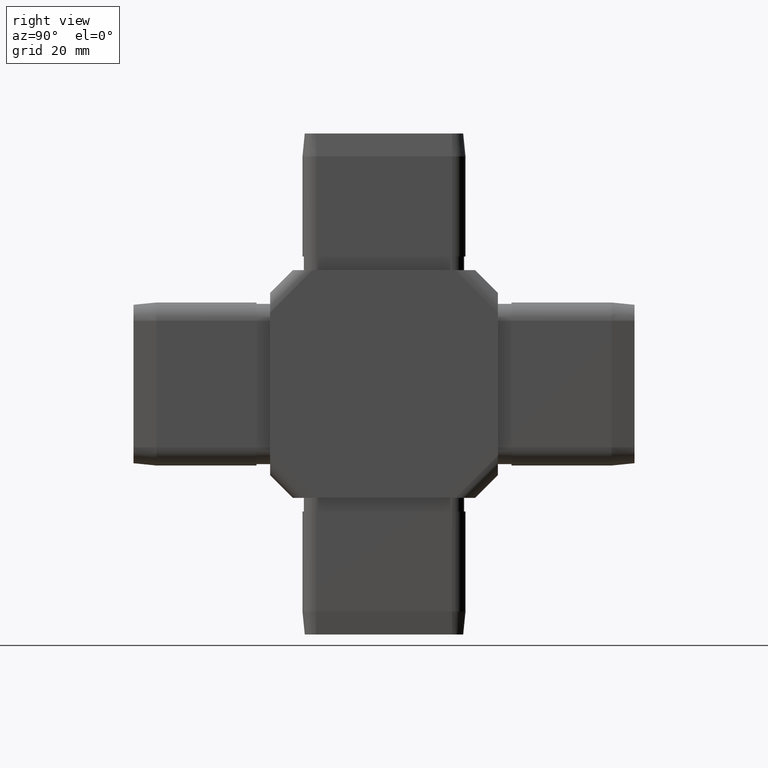
[diagram: clean part render]
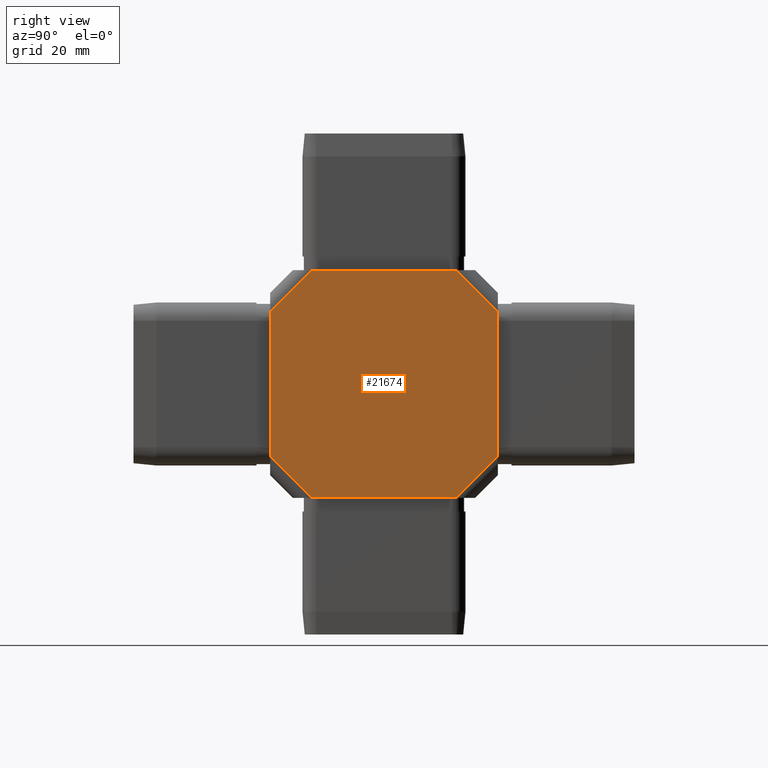
[diagram: same view with one face highlighted and labeled with its STEP entity id]
A machine part, right view. The second image highlights one B-rep face of the part: STEP entity #21674.
In plain terms, the highlighted planar face has unit normal (1, 0, -0).
Its self-contained STEP definition (entity closure, byte-faithful):
#174 = AXIS2_PLACEMENT_3D ( 'NONE', #9312, #21129, #16379 ) ;
#318 = VECTOR ( 'NONE', #21345, 1000.000000000000000 ) ;
#329 = DIRECTION ( 'NONE',  ( -1.471961680016035000E-016, 0.7071067811865455700, 0.7071067811865494600 ) ) ;
#453 = CARTESIAN_POINT ( 'NONE',  ( 19.99999999999999600, 15.75735931288067900, 25.00000000000000000 ) ) ;
#1091 = LINE ( 'NONE', #19353, #10152 ) ;
#1904 = EDGE_CURVE ( 'NONE', #4386, #14188, #13194, .T. ) ;
#2192 = CARTESIAN_POINT ( 'NONE',  ( 20.00000000000000400, -25.00000000000000000, 15.75735931288067900 ) ) ;
#2226 = VECTOR ( 'NONE', #23877, 1000.000000000000000 ) ;
#2455 = ORIENTED_EDGE ( 'NONE', *, *, #24351, .F. ) ;
#2489 = LINE ( 'NONE', #8210, #27411 ) ;
#3972 = CARTESIAN_POINT ( 'NONE',  ( 20.00000000000000400, -25.00000000000000000, -15.75735931288074100 ) ) ;
#4386 = VERTEX_POINT ( 'NONE', #14427 ) ;
#4405 = CARTESIAN_POINT ( 'NONE',  ( 19.99999999999999300, 25.00000000000000000, 25.00000000000000000 ) ) ;
#5938 = EDGE_CURVE ( 'NONE', #14478, #25061, #17197, .T. ) ;
#6453 = VERTEX_POINT ( 'NONE', #30884 ) ;
#6594 = CARTESIAN_POINT ( 'NONE',  ( 19.99999999999999300, 25.00000000000000000, 25.00000000000000000 ) ) ;
#6627 = LINE ( 'NONE', #26265, #28094 ) ;
#8210 = CARTESIAN_POINT ( 'NONE',  ( 19.99999999999999600, 4.621320343559522900, 45.37867965644036900 ) ) ;
#8287 = VECTOR ( 'NONE', #16705, 1000.000000000000000 ) ;
#9123 = CARTESIAN_POINT ( 'NONE',  ( 20.00000000000000400, -25.00000000000000000, 25.00000000000000000 ) ) ;
#9312 = CARTESIAN_POINT ( 'NONE',  ( 19.99999999999999300, 25.00000000000000000, 25.00000000000000000 ) ) ;
#9339 = VERTEX_POINT ( 'NONE', #9418 ) ;
#9418 = CARTESIAN_POINT ( 'NONE',  ( 19.99999999999999600, 15.75735931288073400, -25.00000000000000000 ) ) ;
#10152 = VECTOR ( 'NONE', #329, 1000.000000000000200 ) ;
#10768 = VECTOR ( 'NONE', #25967, 1000.000000000000000 ) ;
#11949 = CARTESIAN_POINT ( 'NONE',  ( 19.99999999999999300, 25.00000000000000000, -25.00000000000000000 ) ) ;
#12550 = DIRECTION ( 'NONE',  ( 1.471961680016042900E-016, -0.7071067811865494600, 0.7071067811865455700 ) ) ;
#13159 = DIRECTION ( 'NONE',  ( 1.471961680016035000E-016, -0.7071067811865455700, -0.7071067811865494600 ) ) ;
#13194 = LINE ( 'NONE', #4405, #2226 ) ;
#13357 = EDGE_CURVE ( 'NONE', #25061, #6453, #6627, .T. ) ;
#13422 = VERTEX_POINT ( 'NONE', #28582 ) ;
#14188 = VERTEX_POINT ( 'NONE', #22810 ) ;
#14427 = CARTESIAN_POINT ( 'NONE',  ( 19.99999999999999300, 25.00000000000000000, 15.75735931288072700 ) ) ;
#14478 = VERTEX_POINT ( 'NONE', #2192 ) ;
#14695 = LINE ( 'NONE', #11949, #8287 ) ;
#14873 = CARTESIAN_POINT ( 'NONE',  ( 19.99999999999999300, 20.37867965644036500, 20.37867965644034000 ) ) ;
#15675 = ORIENTED_EDGE ( 'NONE', *, *, #25373, .T. ) ;
#16379 = DIRECTION ( 'NONE',  ( -2.081668171172168500E-016, 1.000000000000000000, 0.0000000000000000000 ) ) ;
#16581 = LINE ( 'NONE', #6594, #318 ) ;
#16625 = FACE_OUTER_BOUND ( 'NONE', #31281, .T. ) ;
#16705 = DIRECTION ( 'NONE',  ( 2.081668171172168500E-016, -1.000000000000000000, 0.0000000000000000000 ) ) ;
#16800 = EDGE_CURVE ( 'NONE', #4386, #29098, #22258, .T. ) ;
#17197 = LINE ( 'NONE', #9123, #10768 ) ;
#19022 = DIRECTION ( 'NONE',  ( -1.471961680016042900E-016, 0.7071067811865494600, -0.7071067811865455700 ) ) ;
#19272 = ORIENTED_EDGE ( 'NONE', *, *, #5938, .T. ) ;
#19353 = CARTESIAN_POINT ( 'NONE',  ( 19.99999999999998900, 45.37867965644034700, 4.621320343559769000 ) ) ;
#19762 = EDGE_CURVE ( 'NONE', #13422, #14478, #2489, .T. ) ;
#20691 = ORIENTED_EDGE ( 'NONE', *, *, #24328, .T. ) ;
#21129 = DIRECTION ( 'NONE',  ( 1.000000000000000000, 2.081668171172168500E-016, -0.0000000000000000000 ) ) ;
#21345 = DIRECTION ( 'NONE',  ( 2.081668171172168500E-016, -1.000000000000000000, 0.0000000000000000000 ) ) ;
#21503 = ORIENTED_EDGE ( 'NONE', *, *, #16800, .T. ) ;
#21674 = ADVANCED_FACE ( 'NONE', ( #16625 ), #23833, .T. ) ;
#22258 = LINE ( 'NONE', #14873, #25246 ) ;
#22810 = CARTESIAN_POINT ( 'NONE',  ( 19.99999999999999300, 25.00000000000000000, -15.75735931288068600 ) ) ;
#23833 = PLANE ( 'NONE',  #174 ) ;
#23877 = DIRECTION ( 'NONE',  ( -0.0000000000000000000, -0.0000000000000000000, -1.000000000000000000 ) ) ;
#24328 = EDGE_CURVE ( 'NONE', #29098, #13422, #16581, .T. ) ;
#24351 = EDGE_CURVE ( 'NONE', #9339, #6453, #14695, .T. ) ;
#25061 = VERTEX_POINT ( 'NONE', #3972 ) ;
#25246 = VECTOR ( 'NONE', #12550, 1000.000000000000200 ) ;
#25373 = EDGE_CURVE ( 'NONE', #9339, #14188, #1091, .T. ) ;
#25967 = DIRECTION ( 'NONE',  ( -0.0000000000000000000, -0.0000000000000000000, -1.000000000000000000 ) ) ;
#26265 = CARTESIAN_POINT ( 'NONE',  ( 20.00000000000000400, -20.37867965644024800, -20.37867965644049700 ) ) ;
#27411 = VECTOR ( 'NONE', #13159, 1000.000000000000200 ) ;
#28094 = VECTOR ( 'NONE', #19022, 1000.000000000000200 ) ;
#28582 = CARTESIAN_POINT ( 'NONE',  ( 20.00000000000000000, -15.75735931288073400, 25.00000000000000000 ) ) ;
#28830 = ORIENTED_EDGE ( 'NONE', *, *, #13357, .T. ) ;
#29098 = VERTEX_POINT ( 'NONE', #453 ) ;
#29179 = ORIENTED_EDGE ( 'NONE', *, *, #1904, .F. ) ;
#30028 = ORIENTED_EDGE ( 'NONE', *, *, #19762, .T. ) ;
#30884 = CARTESIAN_POINT ( 'NONE',  ( 20.00000000000000000, -15.75735931288069100, -25.00000000000000000 ) ) ;
#31281 = EDGE_LOOP ( 'NONE', ( #2455, #15675, #29179, #21503, #20691, #30028, #19272, #28830 ) ) ;